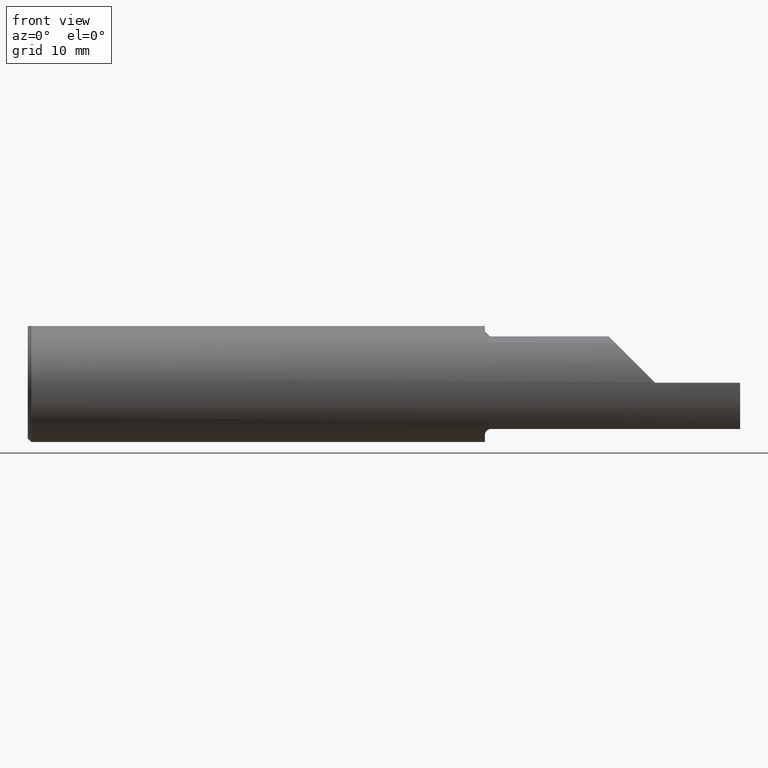
[diagram: clean part render]
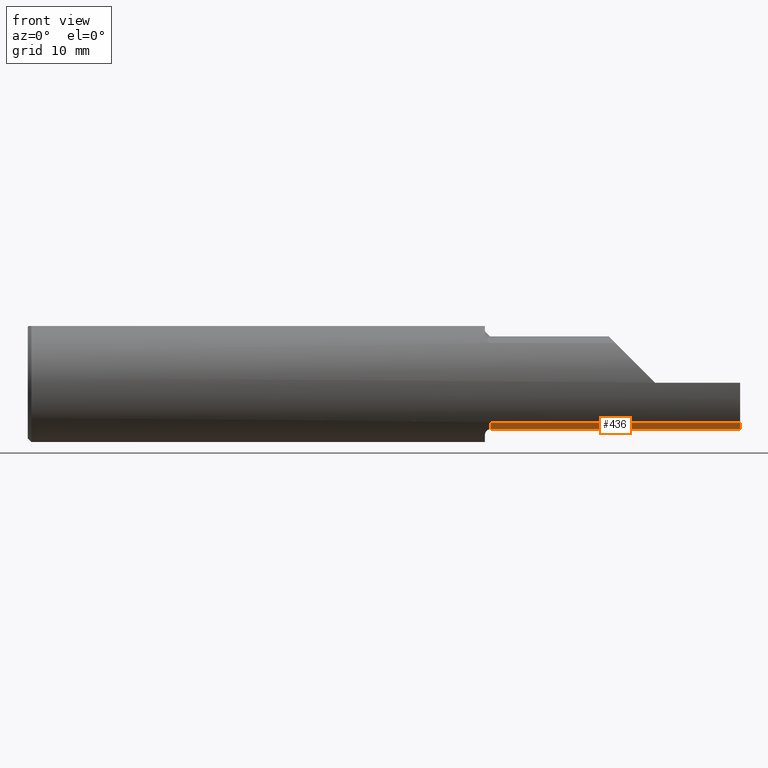
[diagram: same view with one face highlighted and labeled with its STEP entity id]
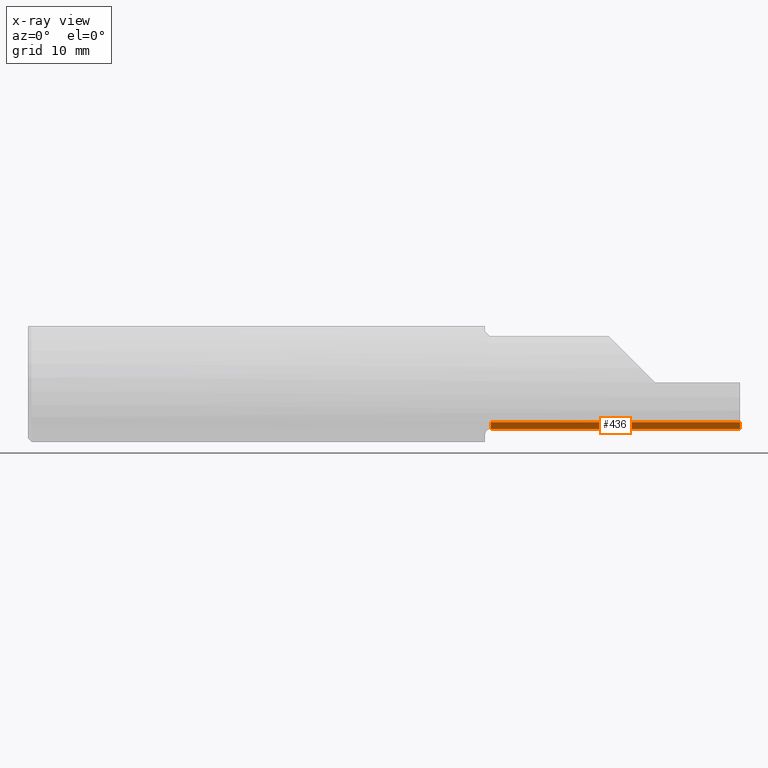
[diagram: x-ray of the same camera — body ghosted, the highlighted face saturated]
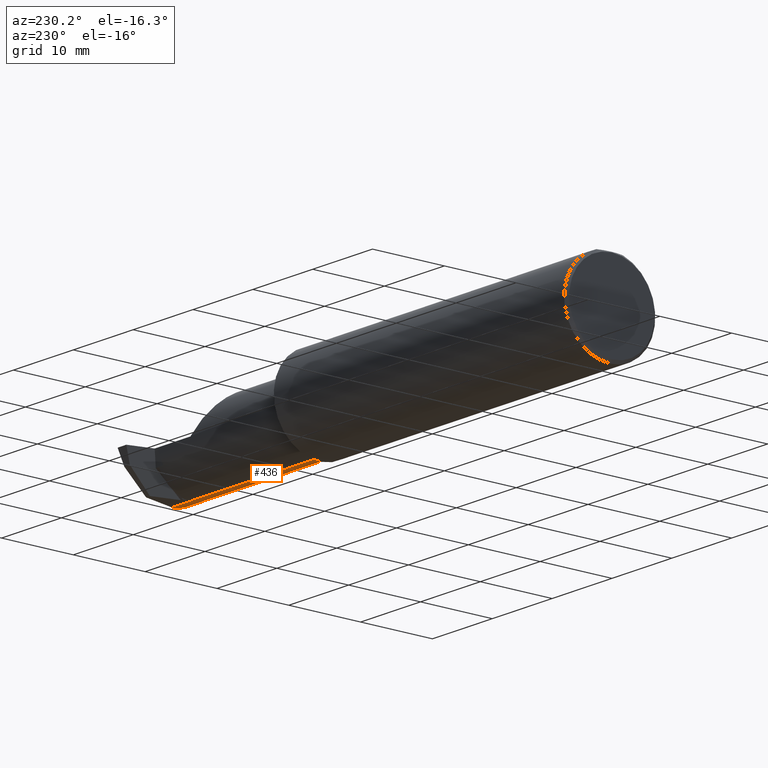
[diagram: same view with one face highlighted and labeled with its STEP entity id]
A machine part, front view. The second image highlights one B-rep face of the part: STEP entity #436.
The next image is the same camera in x-ray: the body ghosted, the highlighted face saturated — about 0% of this face is hidden behind the body in this view.
A second angle (auxiliary view) of the same face is appended — the face is thin or edge-on in the first view.
In plain terms, the highlighted cylindrical surface (partial cylindrical patch) has radius 4.953 mm, axis along (-1, -0, -0).
Its self-contained STEP definition (entity closure, byte-faithful):
#6 = VERTEX_POINT ( 'NONE', #979 ) ;
#38 = ORIENTED_EDGE ( 'NONE', *, *, #727, .F. ) ;
#47 = EDGE_LOOP ( 'NONE', ( #921, #435, #576, #38, #410, #391 ) ) ;
#63 = VERTEX_POINT ( 'NONE', #364 ) ;
#68 = AXIS2_PLACEMENT_3D ( 'NONE', #528, #69, #674 ) ;
#69 = DIRECTION ( 'NONE',  ( 1.000000000000000000, 0.000000000000000000, 0.000000000000000000 ) ) ;
#80 = EDGE_CURVE ( 'NONE', #310, #63, #575, .T. ) ;
#100 = CARTESIAN_POINT ( 'NONE',  ( 3.000000000000000444, -0.1862082793164407113, -0.1665878123213411777 ) ) ;
#120 = CARTESIAN_POINT ( 'NONE',  ( 2.400000000000000355, -0.1862082793164408501, -0.1665878123213411499 ) ) ;
#139 = VECTOR ( 'NONE', #869, 39.37007874015748143 ) ;
#141 = VECTOR ( 'NONE', #178, 39.37007874015748143 ) ;
#178 = DIRECTION ( 'NONE',  ( -1.000000000000000000, -0.000000000000000000, -0.000000000000000000 ) ) ;
#223 = CARTESIAN_POINT ( 'NONE',  ( 3.000000000000000444, -0.08485000000000002263, 0.000000000000000000 ) ) ;
#264 = VERTEX_POINT ( 'NONE', #634 ) ;
#270 = EDGE_CURVE ( 'NONE', #953, #63, #792, .T. ) ;
#272 = CARTESIAN_POINT ( 'NONE',  ( 1.925000000000000266, -0.08484999999999999487, -0.1950000000000000067 ) ) ;
#278 = CARTESIAN_POINT ( 'NONE',  ( 2.875000000000000444, -0.08485000000000003650, -0.1950000000000000067 ) ) ;
#283 = EDGE_CURVE ( 'NONE', #6, #953, #875, .T. ) ;
#294 = DIRECTION ( 'NONE',  ( 0.000000000000000000, 0.000000000000000000, 1.000000000000000000 ) ) ;
#310 = VERTEX_POINT ( 'NONE', #490 ) ;
#322 = AXIS2_PLACEMENT_3D ( 'NONE', #223, #742, #975 ) ;
#330 = CARTESIAN_POINT ( 'NONE',  ( 3.000000000000000444, -0.09664390695082933358, -0.1946430162087383620 ) ) ;
#349 = LINE ( 'NONE', #120, #141 ) ;
#361 = EDGE_CURVE ( 'NONE', #682, #310, #349, .T. ) ;
#364 = CARTESIAN_POINT ( 'NONE',  ( 1.950000000000000178, -0.08484999999999999487, -0.1950000000000000067 ) ) ;
#368 = CYLINDRICAL_SURFACE ( 'NONE', #418, 0.1950000000000000067 ) ;
#381 = CARTESIAN_POINT ( 'NONE',  ( 1.925000000000000266, -0.08485000000000002263, 0.000000000000000000 ) ) ;
#391 = ORIENTED_EDGE ( 'NONE', *, *, #80, .T. ) ;
#410 = ORIENTED_EDGE ( 'NONE', *, *, #361, .T. ) ;
#411 = CARTESIAN_POINT ( 'NONE',  ( 3.000000000000000444, -0.08485000000000003650, -0.1950000000000000067 ) ) ;
#418 = AXIS2_PLACEMENT_3D ( 'NONE', #381, #517, #294 ) ;
#435 = ORIENTED_EDGE ( 'NONE', *, *, #283, .F. ) ;
#436 = ADVANCED_FACE ( 'NONE', ( #589 ), #368, .T. ) ;
#484 = DIRECTION ( 'NONE',  ( -1.000000000000000000, -0.000000000000000000, -0.000000000000000000 ) ) ;
#490 = CARTESIAN_POINT ( 'NONE',  ( 1.950000000000000178, -0.1862082793164408501, -0.1665878123213411499 ) ) ;
#500 = CIRCLE ( 'NONE', #322, 0.1950000000000000344 ) ;
#517 = DIRECTION ( 'NONE',  ( -1.000000000000000000, -0.000000000000000000, -0.000000000000000000 ) ) ;
#528 = CARTESIAN_POINT ( 'NONE',  ( 1.950000000000000178, -0.08485000000000002263, 0.000000000000000000 ) ) ;
#569 = CARTESIAN_POINT ( 'NONE',  ( 2.998911043542020760, -0.09271680594007293552, -0.1948809690765550828 ) ) ;
#575 = CIRCLE ( 'NONE', #68, 0.1950000000000000067 ) ;
#576 = ORIENTED_EDGE ( 'NONE', *, *, #810, .T. ) ;
#589 = FACE_OUTER_BOUND ( 'NONE', #47, .T. ) ;
#634 = CARTESIAN_POINT ( 'NONE',  ( 3.000000000000000444, -0.09664390695082933358, -0.1946430162087383620 ) ) ;
#657 = VECTOR ( 'NONE', #484, 39.37007874015748143 ) ;
#674 = DIRECTION ( 'NONE',  ( 0.000000000000000000, 0.000000000000000000, -1.000000000000000000 ) ) ;
#682 = VERTEX_POINT ( 'NONE', #100 ) ;
#724 = CARTESIAN_POINT ( 'NONE',  ( 2.997857342922081170, -0.08878430348549641582, -0.1950000000000000067 ) ) ;
#727 = EDGE_CURVE ( 'NONE', #682, #264, #500, .T. ) ;
#742 = DIRECTION ( 'NONE',  ( 1.000000000000000000, -0.000000000000000000, -0.000000000000000000 ) ) ;
#774 = CARTESIAN_POINT ( 'NONE',  ( 2.996839862858539760, -0.08485000000000005038, -0.1950000000000000067 ) ) ;
#792 = LINE ( 'NONE', #272, #139 ) ;
#810 = EDGE_CURVE ( 'NONE', #6, #264, #836, .T. ) ;
#836 =( BOUNDED_CURVE ( )  B_SPLINE_CURVE ( 3, ( #774, #724, #569, #330 ),
 .UNSPECIFIED., .F., .F. ) 
 B_SPLINE_CURVE_WITH_KNOTS ( ( 4, 4 ),
 ( 0.6981317007977314582, 0.7586502095447794636 ),
 .UNSPECIFIED. ) 
 CURVE ( )  GEOMETRIC_REPRESENTATION_ITEM ( )  RATIONAL_B_SPLINE_CURVE ( ( 1.000000000000000000, 0.9996948157954452796, 0.9996948157954452796, 1.000000000000000000 ) ) 
 REPRESENTATION_ITEM ( '' )  );
#869 = DIRECTION ( 'NONE',  ( -1.000000000000000000, -0.000000000000000000, -0.000000000000000000 ) ) ;
#875 = LINE ( 'NONE', #411, #657 ) ;
#921 = ORIENTED_EDGE ( 'NONE', *, *, #270, .F. ) ;
#953 = VERTEX_POINT ( 'NONE', #278 ) ;
#975 = DIRECTION ( 'NONE',  ( 0.000000000000000000, 0.000000000000000000, 1.000000000000000000 ) ) ;
#979 = CARTESIAN_POINT ( 'NONE',  ( 2.996839862858539760, -0.08485000000000005038, -0.1950000000000000067 ) ) ;